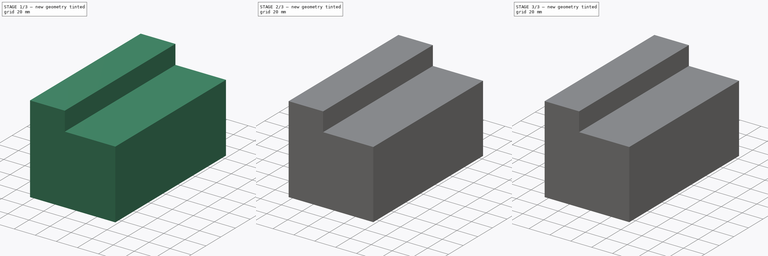
[diagram: build sequence overview — one tinted view per stage of 3, left to right]
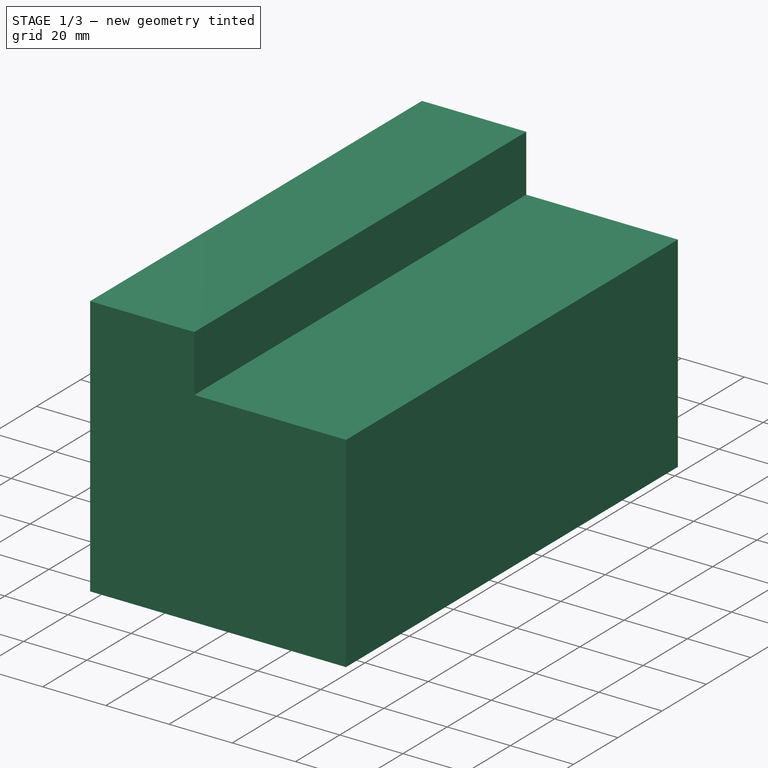
[diagram: stage 1 of 3 — iso view after this stage's code; geometry added in this stage tinted green]
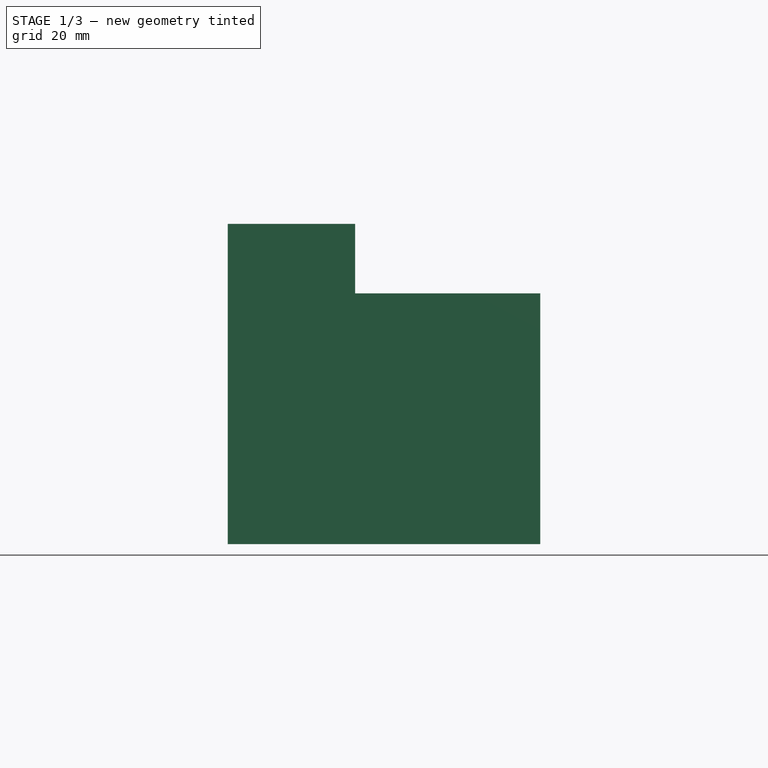
[diagram: stage 1 of 3 — front view after this stage's code; geometry added in this stage tinted green]
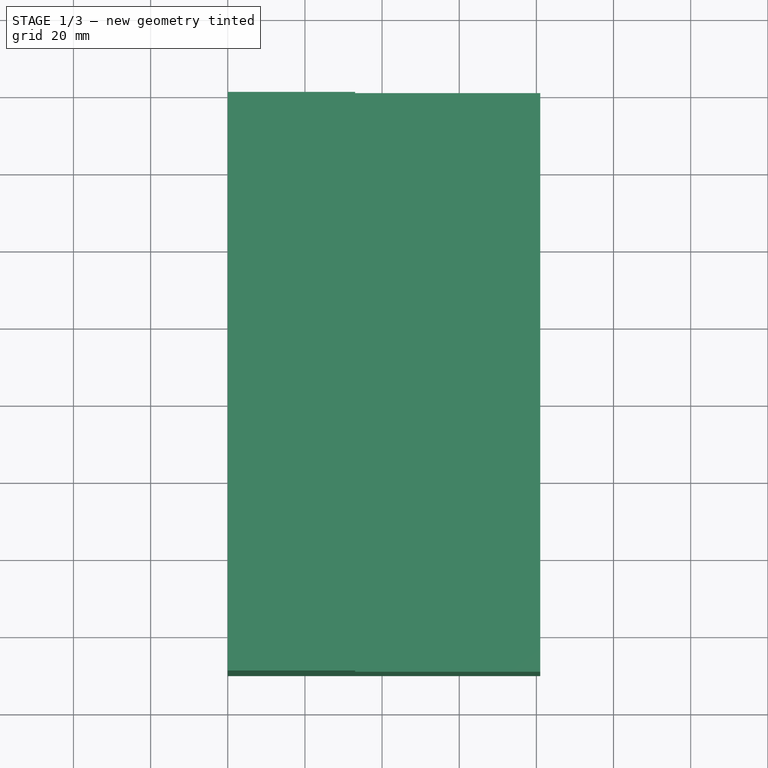
[diagram: stage 1 of 3 — top view after this stage's code; geometry added in this stage tinted green]
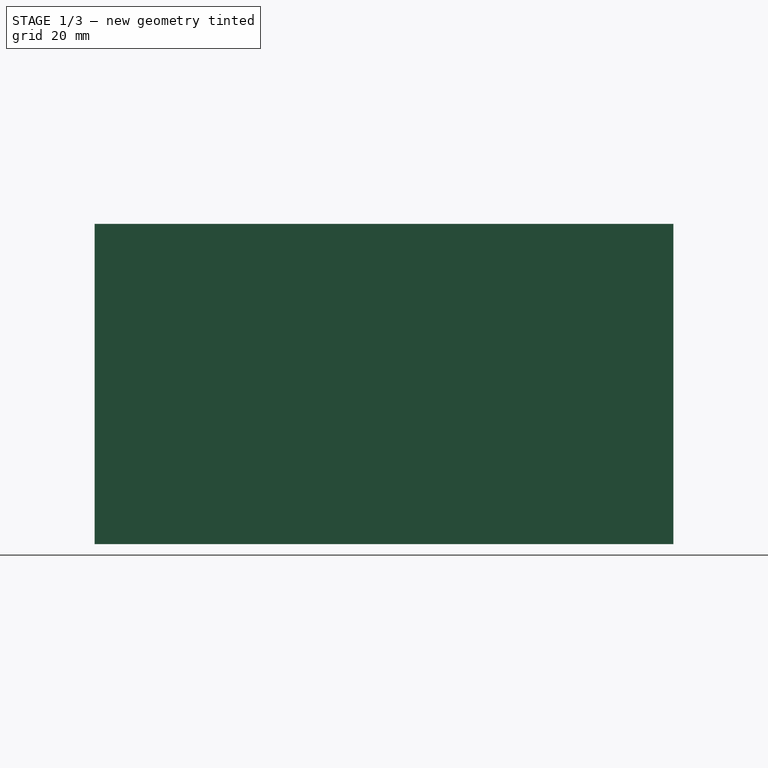
[diagram: stage 1 of 3 — right view after this stage's code; geometry added in this stage tinted green]
FCSTD DOCUMENT  (FreeCAD 1.0R39285 (Git))
Label: Netzteil
License: All rights reserved
LicenseURL: https://en.wikipedia.org/wiki/All_rights_reserved
objects: Sketcher::SketchObject×6, PartDesign::Pad×3, PartDesign::Pocket×3, PartDesign::Chamfer×1, PartDesign::Body×1
note: 34 computed .brp shape members not serialized (recipe doc carries the construction recipe); baked Part::Feature solids carry a one-line shape summary decoded from their .brp

FEATURE [Sketcher::SketchObject] Sketch
  ArcFitTolerance = 1e-06
  AttachmentSupport = -> [XZ_Plane]
  FullyConstrained = true
  MakeInternals = false
  MapMode = 5
  Placement = pos=(0,0,0) rot=(1,0,0;1.5708rad)
  sketch-geometry (6):
    g0: LineSegment StartX=0 StartY=0 StartZ=0 EndX=0 EndY=83 EndZ=0
    g1: LineSegment StartX=0 StartY=83 StartZ=0 EndX=33 EndY=83 EndZ=0
    g2: LineSegment StartX=33 StartY=83 StartZ=0 EndX=33 EndY=65 EndZ=0
    g3: LineSegment StartX=33 StartY=65 StartZ=0 EndX=81 EndY=65 EndZ=0
    g4: LineSegment StartX=81 StartY=65 StartZ=0 EndX=81 EndY=0 EndZ=0
    g5: LineSegment StartX=81 StartY=0 StartZ=0 EndX=0 EndY=0 EndZ=0
  constraints (17):
    c: Vertical(g0)
    c: Coincident(g0,g1)
    c: Horizontal(g1)
    c: Coincident(g1,g2)
    c: Coincident(g2,g3)
    c: Horizontal(g3)
    c: Coincident(g3,g4)
    c: Vertical(g4)
    c: Coincident(g4,g5)
    c: Coincident(g5,g0)
    c: Horizontal(g5)
    c: Vertical(g2)
    c: DistanceX(g1,g1) = 33
    c: DistanceX(g5,g5) = 81
    c: DistanceY(g0,g0) = 83
    c: DistanceY(g4,g4) = 65
    c: Coincident(g0,g-1)
FEATURE [PartDesign::Pad] Pad
  Direction = (0,-1,2e-16)
  Length = 150
  Length2 = 10
  Placement = pos=(0,0,0) rot=(1,0,0;1.5708rad)
  Profile = -> Sketch
  ReferenceAxis = -> Sketch [N_Axis]
  Refine = true
  Suppressed = false
  Type = 0
FEATURE [Sketcher::SketchObject] Sketch001
  ArcFitTolerance = 1e-06
  AttachmentSupport = -> [Pad]
  ExternalGeometry = -> [Pad]
  FullyConstrained = true
  MakeInternals = false
  MapMode = 5
  Placement = pos=(0,0,0) rot=(0.707107,0,-0.707107;3.14159rad)
  sketch-geometry (11):
    g0: Circle CenterX=-41.5 CenterY=90 CenterZ=0 NormalX=0 NormalY=0 NormalZ=1 AngleXU=0 Radius=17.5
    g1: ArcOfCircle CenterX=-41.5 CenterY=90 CenterZ=0 NormalX=0 NormalY=0 NormalZ=1 AngleXU=0 Radius=43.5 StartAngle=2.05498 EndAngle=2.65741
    g2: LineSegment StartX=-80 StartY=110.248 StartZ=0 EndX=-80 EndY=69.7515 EndZ=0
    g3: LineSegment StartX=-61.7485 StartY=51.5 StartZ=0 EndX=-21.2515 EndY=51.5 EndZ=0
    g4: LineSegment StartX=-3 StartY=69.7515 StartZ=0 EndX=-3 EndY=110.248 EndZ=0
    g5: LineSegment StartX=-21.2515 StartY=128.5 StartZ=0 EndX=-61.7485 EndY=128.5 EndZ=0
    g6: ArcOfCircle CenterX=-41.5 CenterY=90 CenterZ=0 NormalX=0 NormalY=0 NormalZ=1 AngleXU=0 Radius=43.5 StartAngle=0.484179 EndAngle=1.08662
    g7: ArcOfCircle CenterX=-41.5 CenterY=90 CenterZ=0 NormalX=0 NormalY=0 NormalZ=1 AngleXU=0 Radius=43.5 StartAngle=3.62577 EndAngle=4.22821
    g8: ArcOfCircle CenterX=-41.5 CenterY=90 CenterZ=0 NormalX=0 NormalY=0 NormalZ=1 AngleXU=0 Radius=43.5 StartAngle=5.19657 EndAngle=5.79901
    g9: LineSegment [constr] StartX=-3 StartY=110.248 StartZ=0 EndX=-2.44e-14 EndY=110.248 EndZ=0
    g10: LineSegment [constr] StartX=-80 StartY=110.248 StartZ=0 EndX=-83 EndY=110.248 EndZ=0
  constraints (37):
    c: Diameter(g0) = 35
    c: Diameter(g1) = 87
    c: Coincident(g1,g0)
    c: Vertical(g2)
    c: Vertical(g4)
    c: Horizontal(g3)
    c: Horizontal(g5)
    c: Coincident(g1,g5)
    c: PointOnObject(g4,g6)
    c: Coincident(g5,g6)
    c: Equal(g1,g6)
    c: PointOnObject(g6,g4)
    c: Coincident(g1,g6)
    c: Coincident(g4,g8)
    c: PointOnObject(g3,g8)
    c: PointOnObject(g2,g7)
    c: Coincident(g1,g2)
    c: PointOnObject(g7,g2)
    c: Coincident(g1,g7)
    c: Coincident(g7,g3)
    c: PointOnObject(g8,g3)
    c: Coincident(g7,g8)
    c: Equal(g7,g1)
    c: Equal(g6,g8)
    c: Equal(g2,g5)
    c: Equal(g5,g4)
    c: Equal(g4,g3)
    c: DistanceX(g1,g4) = 77
    c: Coincident(g9,g4)
    c: PointOnObject(g9,g-4)
    c: Horizontal(g9)
    c: Coincident(g10,g1)
    c: PointOnObject(g10,g-3)
    c: Horizontal(g10)
    c: Equal(g10,g9)
    c: DistanceX(g9,g9) = 3
    c: DistanceY(g1,g-3) = 21.5
FEATURE [PartDesign::Pocket] Pocket
  BaseFeature = -> Pad
  Direction = (1,0,2e-16)
  Length = 5
  Length2 = 5
  Placement = pos=(0,0,0) rot=(1,0,0;1.5708rad)
  Profile = -> Sketch001
  ReferenceAxis = -> Sketch001 [N_Axis]
  Refine = true
  Suppressed = false
  Type = 0
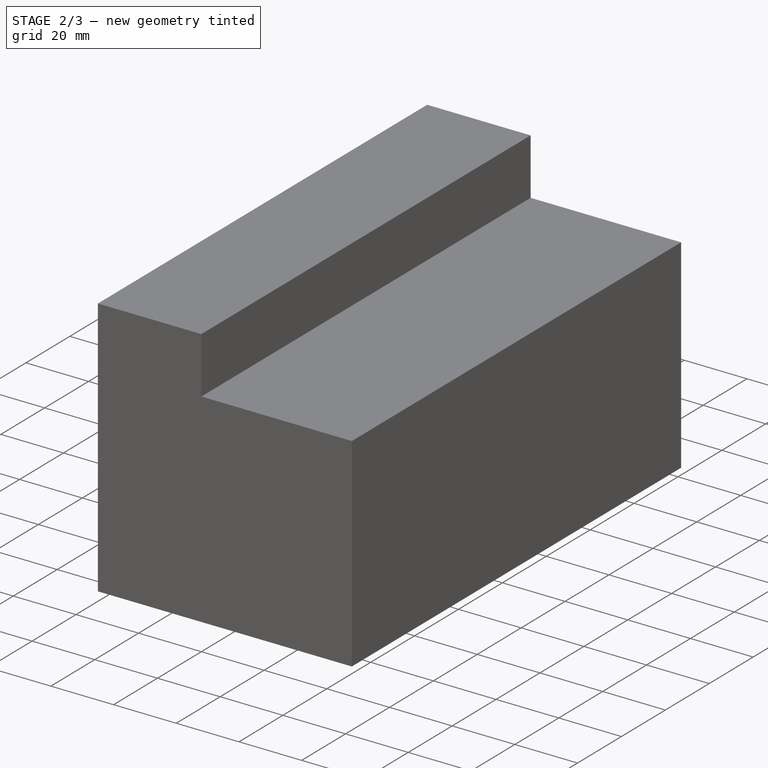
[diagram: stage 2 of 3 — iso view after this stage's code; geometry added in this stage tinted green]
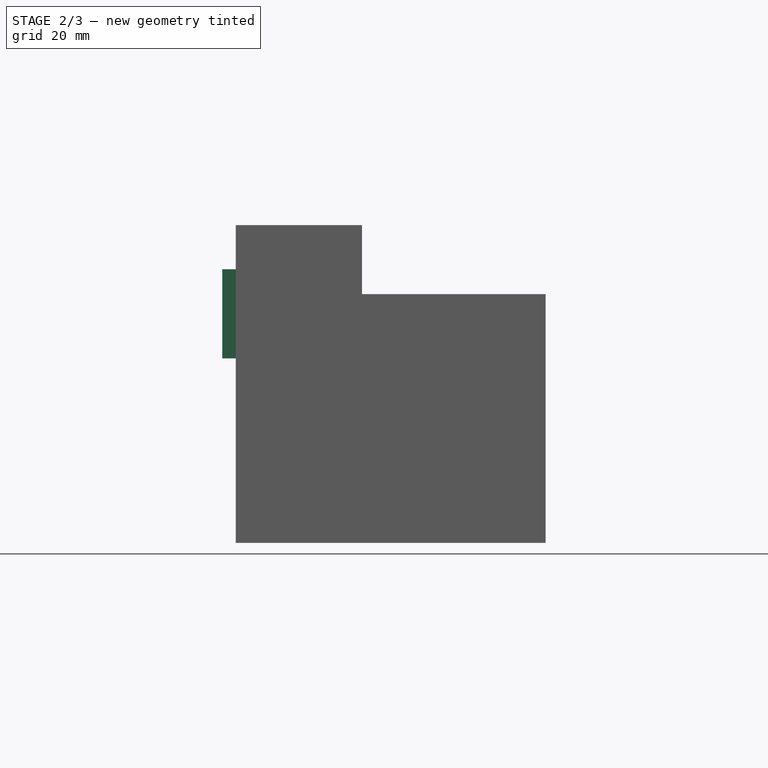
[diagram: stage 2 of 3 — front view after this stage's code; geometry added in this stage tinted green]
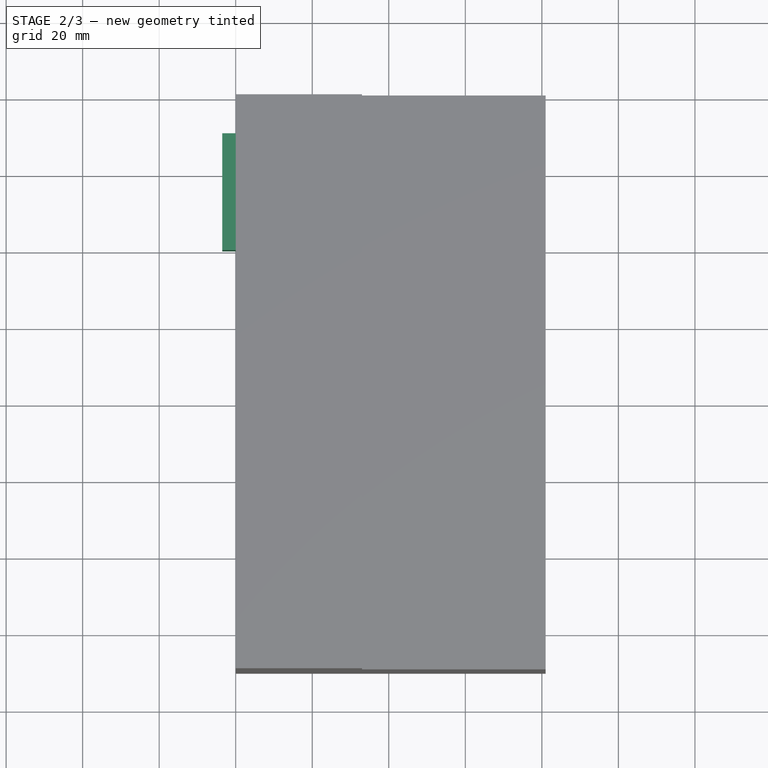
[diagram: stage 2 of 3 — top view after this stage's code; geometry added in this stage tinted green]
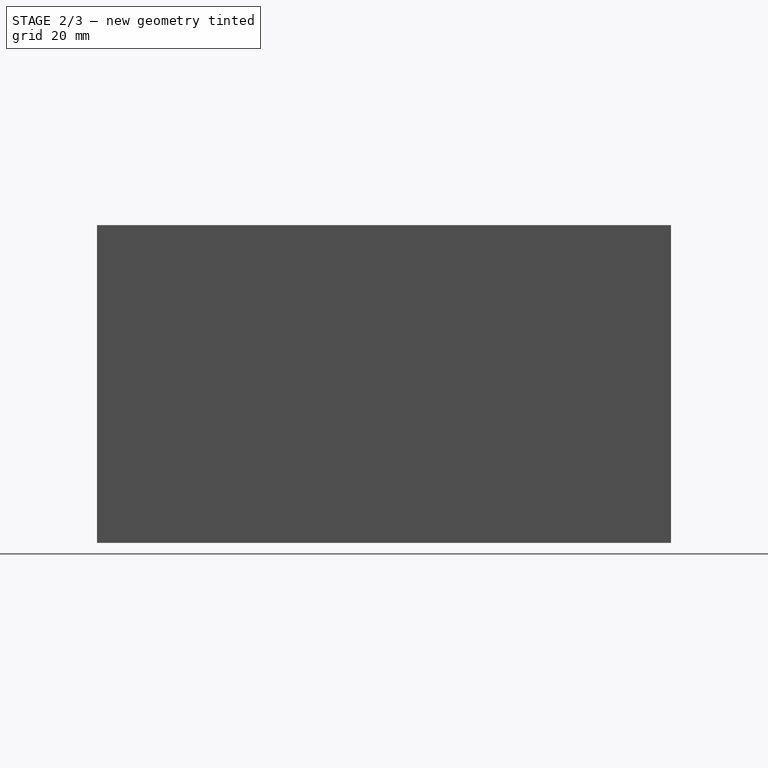
[diagram: stage 2 of 3 — right view after this stage's code; geometry added in this stage tinted green]
FEATURE [Sketcher::SketchObject] Sketch002
  ArcFitTolerance = 1e-06
  AttachmentSupport = -> [Pocket]
  ExternalGeometry = -> [Pocket]
  FullyConstrained = true
  MakeInternals = false
  MapMode = 5
  Placement = pos=(0,0,0) rot=(0.707107,0,-0.707107;3.14159rad)
  sketch-geometry (4):
    g0: LineSegment StartX=-71.5 StartY=40.5 StartZ=0 EndX=-71.5 EndY=10 EndZ=0
    g1: LineSegment StartX=-71.5 StartY=10 StartZ=0 EndX=-48.2 EndY=10 EndZ=0
    g2: LineSegment StartX=-48.2 StartY=10 StartZ=0 EndX=-48.2 EndY=40.5 EndZ=0
    g3: LineSegment StartX=-48.2 StartY=40.5 StartZ=0 EndX=-71.5 EndY=40.5 EndZ=0
  constraints (12):
    c: Coincident(g0,g1)
    c: Coincident(g1,g2)
    c: Coincident(g2,g3)
    c: Coincident(g3,g0)
    c: Vertical(g0)
    c: Vertical(g2)
    c: Horizontal(g1)
    c: Horizontal(g3)
    c: Distance(g0,g2) = 23.3
    c: Distance(g1,g3) = 30.5
    c: DistanceY(g-1,g0) = 10
    c: DistanceX(g-3,g0) = 11.5
FEATURE [PartDesign::Pad] Pad001
  BaseFeature = -> Pocket
  Direction = (-1,0,-2e-16)
  Length = 3.5
  Length2 = 10
  Placement = pos=(0,0,0) rot=(1,0,0;1.5708rad)
  Profile = -> Sketch002
  ReferenceAxis = -> Sketch002 [N_Axis]
  Refine = true
  Suppressed = false
  Type = 0
FEATURE [Sketcher::SketchObject] Sketch003
  ArcFitTolerance = 1e-06
  AttachmentSupport = -> [Pad001]
  ExternalGeometry = -> [Pad001]
  FullyConstrained = true
  MakeInternals = false
  MapMode = 5
  Placement = pos=(-3.5,0,0) rot=(0.707107,0,-0.707107;3.14159rad)
  sketch-geometry (28):
    g0: LineSegment StartX=-68.5 StartY=37.5 StartZ=0 EndX=-68.5 EndY=13 EndZ=0
    g1: LineSegment StartX=-68.5 StartY=13 StartZ=0 EndX=-55.45 EndY=13 EndZ=0
    g2: LineSegment StartX=-55.45 StartY=13 StartZ=0 EndX=-51.2 EndY=17.25 EndZ=0
    g3: LineSegment StartX=-51.2 StartY=17.25 StartZ=0 EndX=-51.2 EndY=33.25 EndZ=0
    g4: LineSegment StartX=-51.2 StartY=33.25 StartZ=0 EndX=-55.45 EndY=37.5 EndZ=0
    g5: LineSegment StartX=-55.45 StartY=37.5 StartZ=0 EndX=-68.5 EndY=37.5 EndZ=0
    g6: GeomPoint X=-51.2 Y=37.5 Z=0
    g7: GeomPoint X=-51.2 Y=13 Z=0
    g8: LineSegment [constr] StartX=-68.5 StartY=13 StartZ=0 EndX=-68.5 EndY=10 EndZ=0
    g9: LineSegment [constr] StartX=-68.5 StartY=13 StartZ=0 EndX=-71.5 EndY=13 EndZ=0
    g10: LineSegment [constr] StartX=-51.2 StartY=37.5 StartZ=0 EndX=-51.2 EndY=40.5 EndZ=0
    g11: LineSegment [constr] StartX=-51.2 StartY=37.5 StartZ=0 EndX=-48.2 EndY=37.5 EndZ=0
    g12: LineSegment StartX=-63.5 StartY=32.5 StartZ=0 EndX=-63.5 EndY=31 EndZ=0
    g13: LineSegment StartX=-63.5 StartY=31 StartZ=0 EndX=-60.5 EndY=31 EndZ=0
    g14: LineSegment StartX=-60.5 StartY=31 StartZ=0 EndX=-60.5 EndY=32.5 EndZ=0
    g15: LineSegment StartX=-60.5 StartY=32.5 StartZ=0 EndX=-63.5 EndY=32.5 EndZ=0
    g16: LineSegment StartX=-63.5 StartY=19.5 StartZ=0 EndX=-63.5 EndY=18 EndZ=0
    g17: LineSegment StartX=-63.5 StartY=18 StartZ=0 EndX=-60.5 EndY=18 EndZ=0
    g18: LineSegment StartX=-60.5 StartY=18 StartZ=0 EndX=-60.5 EndY=19.5 EndZ=0
    g19: LineSegment StartX=-60.5 StartY=19.5 StartZ=0 EndX=-63.5 EndY=19.5 EndZ=0
    g20: LineSegment StartX=-60.5 StartY=26 StartZ=0 EndX=-60.5 EndY=24.5 EndZ=0
    g21: LineSegment StartX=-60.5 StartY=24.5 StartZ=0 EndX=-57.5 EndY=24.5 EndZ=0
    g22: LineSegment StartX=-57.5 StartY=24.5 StartZ=0 EndX=-57.5 EndY=26 EndZ=0
    g23: LineSegment StartX=-57.5 StartY=26 StartZ=0 EndX=-60.5 EndY=26 EndZ=0
    g24: GeomPoint X=-68.5 Y=25.25 Z=0
    g25: GeomPoint X=-60.5 Y=25.25 Z=0
    g26: LineSegment [constr] StartX=-60.5 StartY=19.5 StartZ=0 EndX=-60.5 EndY=24.5 EndZ=0
    g27: LineSegment [constr] StartX=-60.5 StartY=26 StartZ=0 EndX=-60.5 EndY=31 EndZ=0
  constraints (76):
    c: Vertical(g0)
    c: Coincident(g0,g1)
    c: Horizontal(g1)
    c: Coincident(g1,g2)
    c: Coincident(g2,g3)
    c: Vertical(g3)
    c: Coincident(g3,g4)
    c: Coincident(g4,g5)
    c: Coincident(g5,g0)
    c: Horizontal(g5)
    c: Equal(g4,g2)
    c: Equal(g5,g1)
    c: Horizontal(g7,g1)
    c: Vertical(g7,g2)
    c: Horizontal(g6,g4)
    c: Vertical(g6,g3)
    c: Coincident(g8,g0)
    c: PointOnObject(g8,g-6)
    c: Vertical(g8)
    c: Coincident(g9,g0)
    c: PointOnObject(g9,g-3)
    c: Horizontal(g9)
    c: Coincident(g10,g6)
    c: PointOnObject(g10,g-4)
    c: Vertical(g10)
    c: Coincident(g11,g6)
    c: PointOnObject(g11,g-5)
    c: Horizontal(g11)
    c: Equal(g11,g10)
    c: Equal(g10,g8)
    c: Equal(g8,g9)
    c: DistanceY(g8,g8) = 3
    c: Angle(g2,g1) = 2.35619
    c: DistanceY(g3,g3) = 16
    c: Coincident(g12,g13)
    c: Coincident(g13,g14)
    c: Coincident(g14,g15)
    c: Coincident(g15,g12)
    c: Vertical(g12)
    c: Vertical(g14)
    c: Horizontal(g13)
    c: Horizontal(g15)
    c: Coincident(g16,g17)
    c: Coincident(g17,g18)
    c: Coincident(g18,g19)
    c: Coincident(g19,g16)
    c: Vertical(g16)
    c: Vertical(g18)
    c: Horizontal(g17)
    c: Horizontal(g19)
    c: Coincident(g20,g21)
    c: Coincident(g21,g22)
    c: Coincident(g22,g23)
    c: Coincident(g23,g20)
    c: Vertical(g20)
    c: Vertical(g22)
    c: Horizontal(g21)
    c: Horizontal(g23)
    c: Equal(g13,g23)
    c: Equal(g23,g19)
    c: Equal(g18,g20)
    c: Equal(g20,g14)
    c: DistanceX(g21,g21) = 3
    c: DistanceY(g22,g22) = 1.5
    c: Vertical(g12,g16)
    c: Vertical(g20,g18)
    c: Symmetric(g0,g0,g24)
    c: Symmetric(g20,g20,g25)
    c: Horizontal(g25,g24)
    c: Coincident(g26,g18)
    c: Coincident(g26,g20)
    c: Coincident(g27,g20)
    c: Coincident(g27,g13)
    c: Equal(g27,g26)
    c: DistanceX(g0,g12) = 5
    c: DistanceY(g26,g26) = 5
FEATURE [PartDesign::Pocket] Pocket001
  BaseFeature = -> Pad001
  Direction = (1,0,2e-16)
  Length = 10
  Length2 = 5
  Placement = pos=(0,0,0) rot=(1,0,0;1.5708rad)
  Profile = -> Sketch003
  ReferenceAxis = -> Sketch003 [N_Axis]
  Refine = true
  Suppressed = false
  Type = 0
FEATURE [PartDesign::Chamfer] Chamfer
  Angle = 45
  Base = -> Pocket001 [Edge103,Edge100,Edge102,Edge98,Edge90,Edge92,Edge95,Edge94,Edge108,Edge106,Edge111,Edge110]
  BaseFeature = -> Pocket001
  ChamferType = 1
  FlipDirection = false
  Placement = pos=(0,0,0) rot=(1,0,0;1.5708rad)
  Refine = true
  Size = 1.5
  Size2 = 0.5
  SupportTransform = false
  Suppressed = false
  UseAllEdges = false
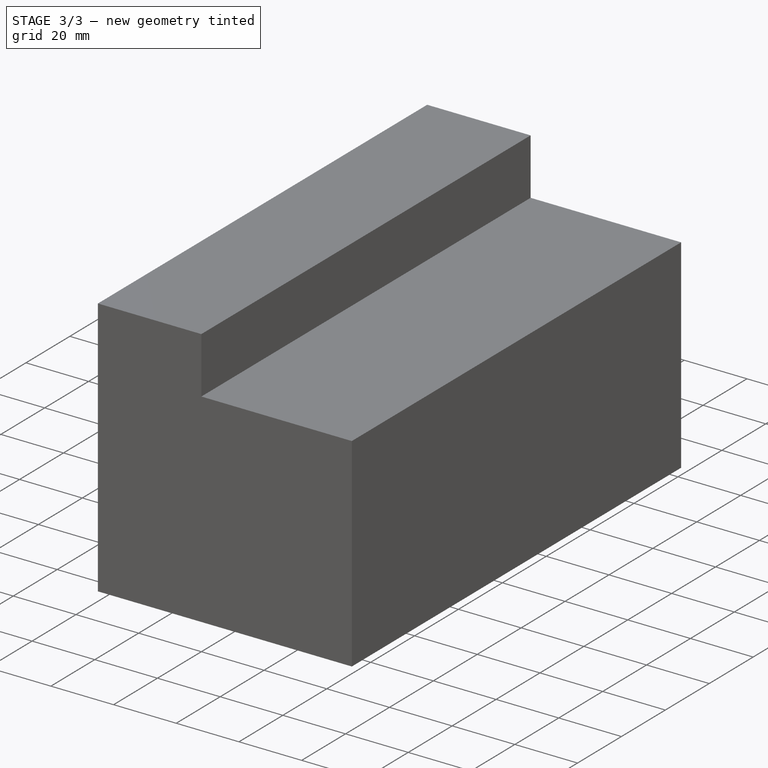
[diagram: stage 3 of 3 — iso view after this stage's code; geometry added in this stage tinted green]
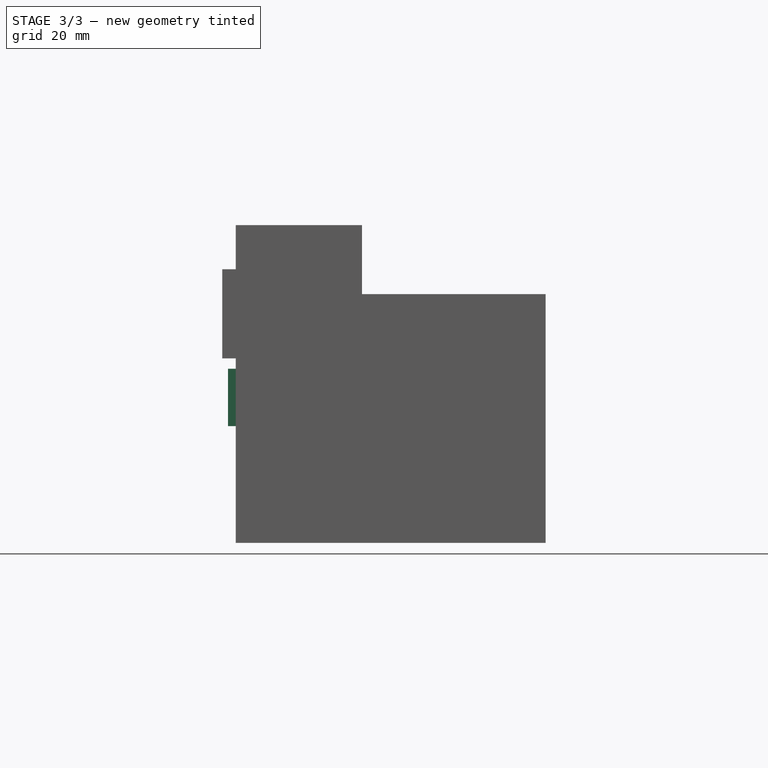
[diagram: stage 3 of 3 — front view after this stage's code; geometry added in this stage tinted green]
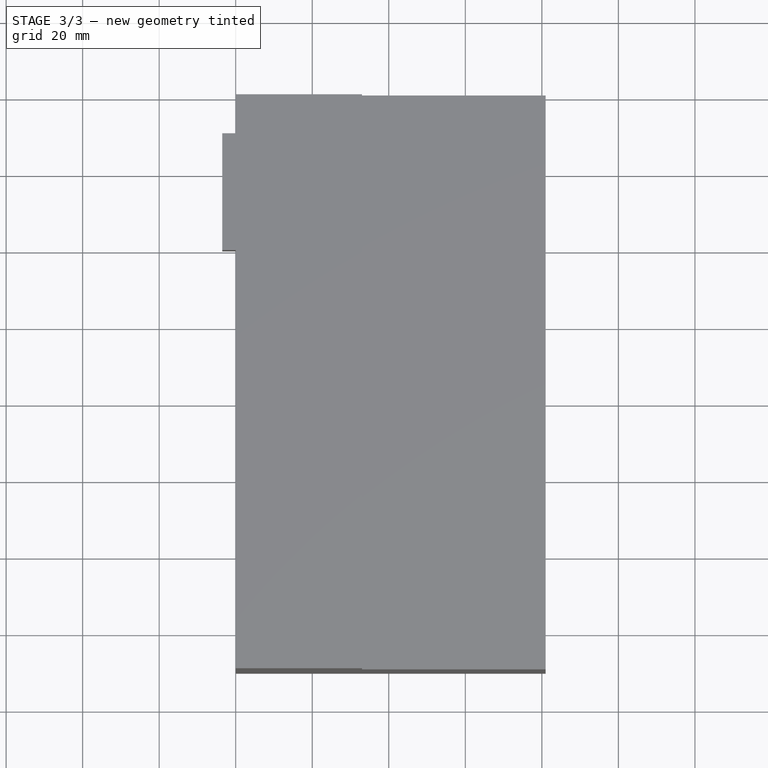
[diagram: stage 3 of 3 — top view after this stage's code; geometry added in this stage tinted green]
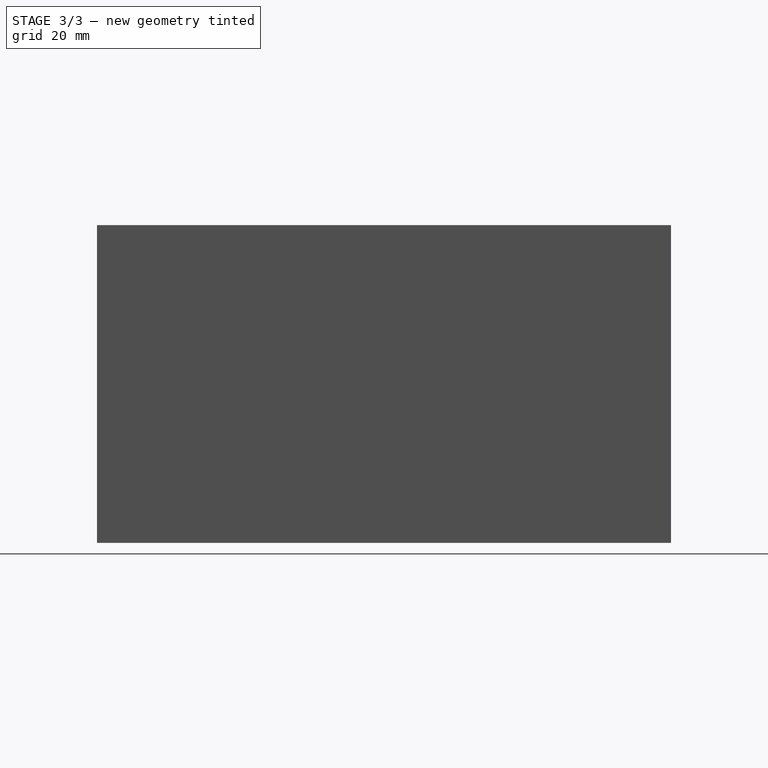
[diagram: stage 3 of 3 — right view after this stage's code; geometry added in this stage tinted green]
FEATURE [Sketcher::SketchObject] Sketch004
  ArcFitTolerance = 1e-06
  AttachmentSupport = -> [Chamfer]
  ExternalGeometry = -> [Chamfer]
  FullyConstrained = true
  MakeInternals = false
  MapMode = 5
  Placement = pos=(0,0,0) rot=(0.707107,0,-0.707107;3.14159rad)
  sketch-geometry (6):
    g0: LineSegment StartX=-45.5 StartY=35.75 StartZ=0 EndX=-45.5 EndY=14.75 EndZ=0
    g1: LineSegment StartX=-45.5 StartY=14.75 StartZ=0 EndX=-30.5 EndY=14.75 EndZ=0
    g2: LineSegment StartX=-30.5 StartY=14.75 StartZ=0 EndX=-30.5 EndY=35.75 EndZ=0
    g3: LineSegment StartX=-30.5 StartY=35.75 StartZ=0 EndX=-45.5 EndY=35.75 EndZ=0
    g4: GeomPoint [constr] X=-48.2 Y=25.25 Z=0
    g5: GeomPoint [constr] X=-45.5 Y=25.25 Z=0
  constraints (14):
    c: Coincident(g0,g1)
    c: Coincident(g1,g2)
    c: Coincident(g2,g3)
    c: Coincident(g3,g0)
    c: Vertical(g0)
    c: Vertical(g2)
    c: Horizontal(g1)
    c: Horizontal(g3)
    c: Distance(g0,g2) = 15
    c: Distance(g1,g3) = 21
    c: Symmetric(g-3,g-3,g4)
    c: Symmetric(g0,g0,g5)
    c: Horizontal(g5,g4)
    c: DistanceX(g1,g-1) = 30.5
FEATURE [PartDesign::Pad] Pad002
  BaseFeature = -> Chamfer
  Direction = (-1,0,-2e-16)
  Length = 2
  Length2 = 10
  Placement = pos=(0,0,0) rot=(1,0,0;1.5708rad)
  Profile = -> Sketch004
  ReferenceAxis = -> Sketch004 [N_Axis]
  Refine = true
  Suppressed = false
  Type = 0
FEATURE [Sketcher::SketchObject] Sketch005
  ArcFitTolerance = 1e-06
  AttachmentSupport = -> [Pad002]
  ExternalGeometry = -> [Pad002]
  FullyConstrained = true
  MakeInternals = false
  MapMode = 5
  Placement = pos=(-2,0,0) rot=(0.707107,0,-0.707107;3.14159rad)
  sketch-geometry (10):
    g0: LineSegment StartX=-42.5 StartY=17.75 StartZ=0 EndX=-33.5 EndY=17.75 EndZ=0
    g1: LineSegment StartX=-33.5 StartY=17.75 StartZ=0 EndX=-33.5 EndY=18.75 EndZ=0
    g2: LineSegment StartX=-33.5 StartY=18.75 StartZ=0 EndX=-42.5 EndY=18.75 EndZ=0
    g3: LineSegment StartX=-42.5 StartY=18.75 StartZ=0 EndX=-42.5 EndY=17.75 EndZ=0
    g4: Circle CenterX=-38 CenterY=28.75 CenterZ=0 NormalX=0 NormalY=0 NormalZ=1 AngleXU=0 Radius=5.5
    g5: Circle CenterX=-38 CenterY=28.75 CenterZ=0 NormalX=0 NormalY=0 NormalZ=1 AngleXU=0 Radius=4
    g6: GeomPoint [constr] X=-45.5 Y=28.75 Z=0
    g7: GeomPoint [constr] X=-30.5 Y=28.75 Z=0
    g8: GeomPoint [constr] X=-38 Y=17.75 Z=0
    g9: GeomPoint [constr] X=-38 Y=14.75 Z=0
  constraints (22):
    c: Coincident(g0,g1)
    c: Coincident(g1,g2)
    c: Coincident(g2,g3)
    c: Coincident(g3,g0)
    c: Horizontal(g0)
    c: Horizontal(g2)
    c: Vertical(g1)
    c: Vertical(g3)
    c: Coincident(g5,g4)
    c: PointOnObject(g6,g-5)
    c: PointOnObject(g7,g-6)
    c: Horizontal(g7,g6)
    c: Symmetric(g6,g7,g4)
    c: Diameter(g5) = 8
    c: Diameter(g4) = 11
    c: DistanceY(g6,g-5) = 7
    c: DistanceX(g2,g2) = 9
    c: DistanceY(g3,g3) = 1
    c: Symmetric(g0,g0,g8)
    c: Symmetric(g-4,g-4,g9)
    c: Vertical(g8,g9)
    c: DistanceY(g-5,g0) = 3
FEATURE [PartDesign::Pocket] Pocket002
  BaseFeature = -> Pad002
  Direction = (1,0,2e-16)
  Length = 0.1
  Length2 = 5
  Placement = pos=(0,0,0) rot=(1,0,0;1.5708rad)
  Profile = -> Sketch005
  ReferenceAxis = -> Sketch005 [N_Axis]
  Refine = true
  Suppressed = false
  Type = 0
FEATURE [PartDesign::Body] Body  label="Körper"
  AllowCompound = false
  Group = -> [Sketch,Pad,Sketch001,Pocket,Sketch002,Pad001,Sketch003,Pocket001,Chamfer,Sketch004,Pad002,Sketch005,Pocket002]
  Origin = -> Origin
  Tip = -> Pocket002
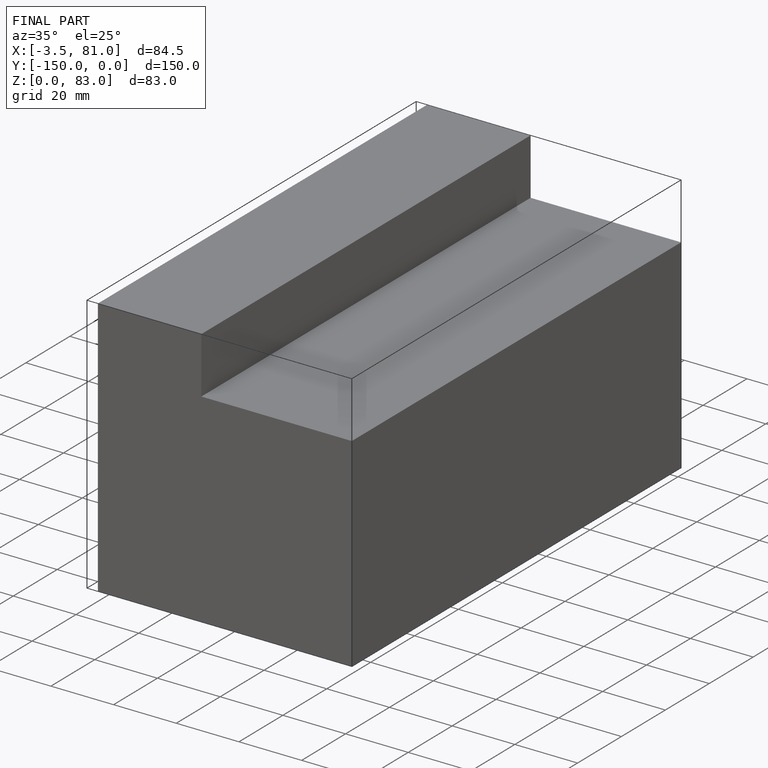
[diagram: finished part — iso view with bounding-box wireframe]
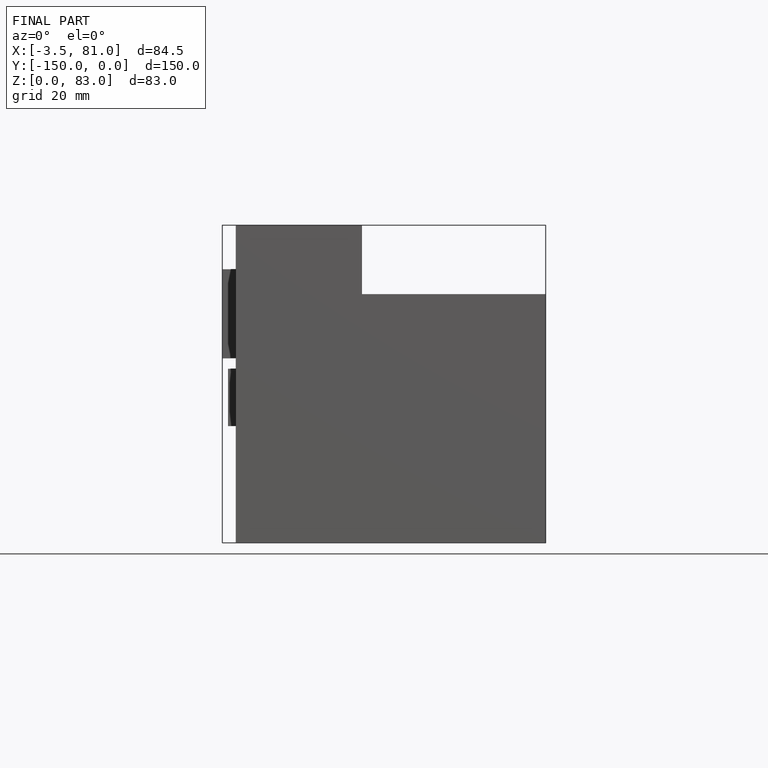
[diagram: finished part — front view with bounding-box wireframe]
